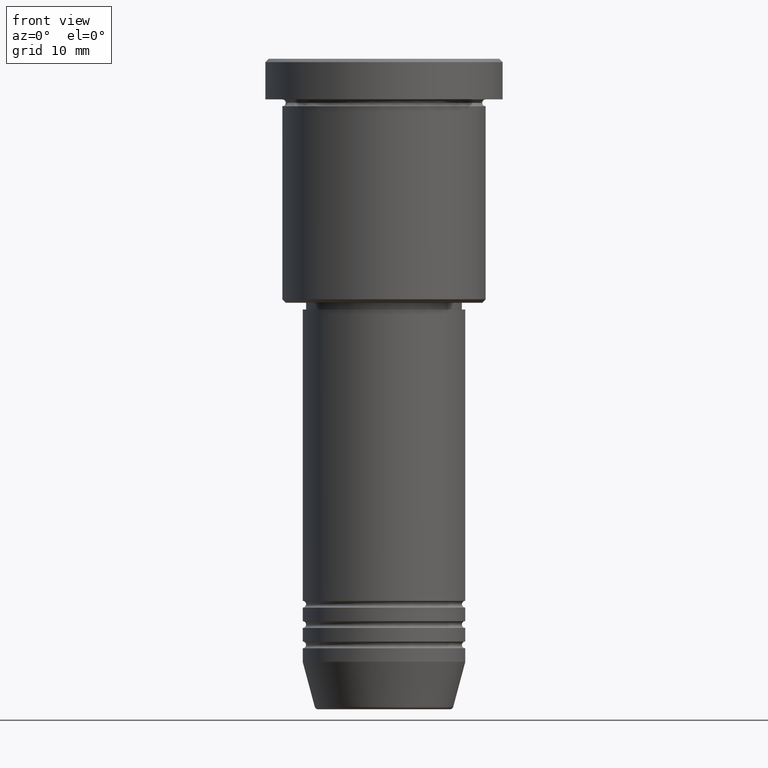
[diagram: clean part render]
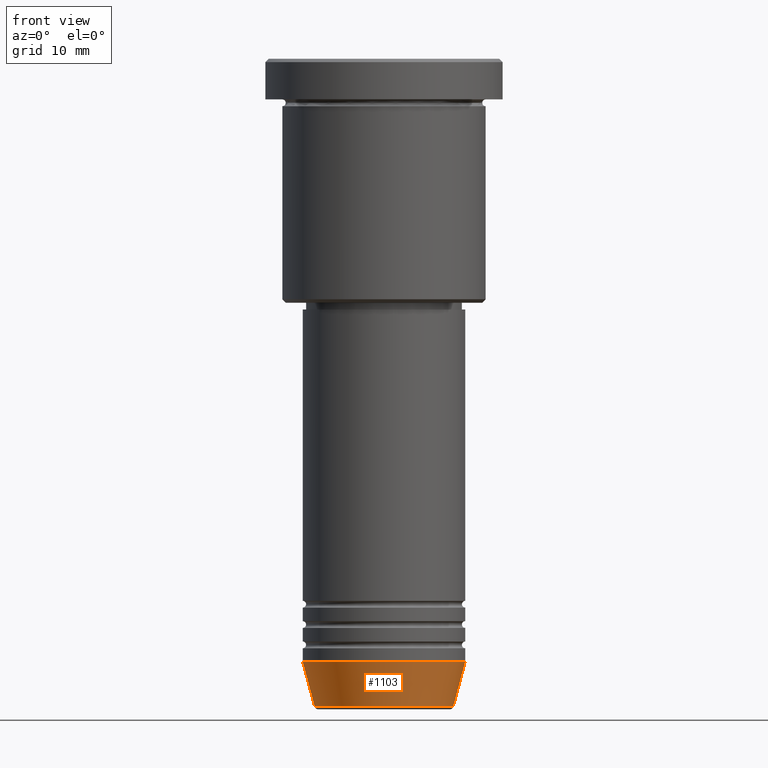
[diagram: same view with one face highlighted and labeled with its STEP entity id]
A machine part, front view. The second image highlights one B-rep face of the part: STEP entity #1103.
In plain terms, the highlighted conical surface has half-angle 15 deg.
Its self-contained STEP definition (entity closure, byte-faithful):
#14 = CARTESIAN_POINT ( 'NONE',  ( 12.00000000000000000, 0.000000000000000000, -89.00000000000000000 ) ) ;
#30 = CARTESIAN_POINT ( 'NONE',  ( -12.00000000000000000, 1.469576158976823947E-15, -89.00000000000000000 ) ) ;
#47 = ORIENTED_EDGE ( 'NONE', *, *, #251, .F. ) ;
#55 = VECTOR ( 'NONE', #1107, 1000.000000000000000 ) ;
#74 = CARTESIAN_POINT ( 'NONE',  ( 0.000000000000000000, 0.000000000000000000, -95.62940952255127058 ) ) ;
#100 = VERTEX_POINT ( 'NONE', #1151 ) ;
#123 = EDGE_CURVE ( 'NONE', #100, #731, #218, .T. ) ;
#218 = CIRCLE ( 'NONE', #279, 10.22365507213718949 ) ;
#244 = ORIENTED_EDGE ( 'NONE', *, *, #582, .F. ) ;
#251 = EDGE_CURVE ( 'NONE', #303, #824, #381, .T. ) ;
#265 = DIRECTION ( 'NONE',  ( 1.000000000000000000, 0.000000000000000000, 0.000000000000000000 ) ) ;
#274 = CARTESIAN_POINT ( 'NONE',  ( 10.22365507213718949, 0.000000000000000000, -95.62940952255127058 ) ) ;
#279 = AXIS2_PLACEMENT_3D ( 'NONE', #74, #1167, #620 ) ;
#293 = CARTESIAN_POINT ( 'NONE',  ( -12.00000000000000000, 1.469576158976823947E-15, -89.00000000000000000 ) ) ;
#303 = VERTEX_POINT ( 'NONE', #30 ) ;
#341 = VECTOR ( 'NONE', #1015, 1000.000000000000000 ) ;
#343 = CONICAL_SURFACE ( 'NONE', #940, 12.00000000000000000, 0.2617993877991500740 ) ;
#381 = CIRCLE ( 'NONE', #531, 12.00000000000000000 ) ;
#531 = AXIS2_PLACEMENT_3D ( 'NONE', #611, #1154, #265 ) ;
#539 = DIRECTION ( 'NONE',  ( -0.000000000000000000, -0.000000000000000000, 1.000000000000000000 ) ) ;
#559 = EDGE_LOOP ( 'NONE', ( #244, #850, #960, #47 ) ) ;
#582 = EDGE_CURVE ( 'NONE', #100, #303, #1102, .T. ) ;
#611 = CARTESIAN_POINT ( 'NONE',  ( 0.000000000000000000, 0.000000000000000000, -89.00000000000000000 ) ) ;
#620 = DIRECTION ( 'NONE',  ( 1.000000000000000000, 0.000000000000000000, 0.000000000000000000 ) ) ;
#673 = CARTESIAN_POINT ( 'NONE',  ( 12.00000000000000000, 0.000000000000000000, -89.00000000000000000 ) ) ;
#717 = DIRECTION ( 'NONE',  ( 1.000000000000000000, 0.000000000000000000, 0.000000000000000000 ) ) ;
#731 = VERTEX_POINT ( 'NONE', #274 ) ;
#759 = EDGE_CURVE ( 'NONE', #731, #824, #1121, .T. ) ;
#812 = FACE_OUTER_BOUND ( 'NONE', #559, .T. ) ;
#824 = VERTEX_POINT ( 'NONE', #14 ) ;
#825 = CARTESIAN_POINT ( 'NONE',  ( 0.000000000000000000, 0.000000000000000000, -89.00000000000000000 ) ) ;
#850 = ORIENTED_EDGE ( 'NONE', *, *, #123, .T. ) ;
#940 = AXIS2_PLACEMENT_3D ( 'NONE', #825, #539, #717 ) ;
#960 = ORIENTED_EDGE ( 'NONE', *, *, #759, .T. ) ;
#1015 = DIRECTION ( 'NONE',  ( 0.2588190451025213501, 0.000000000000000000, 0.9659258262890680902 ) ) ;
#1102 = LINE ( 'NONE', #293, #55 ) ;
#1103 = ADVANCED_FACE ( 'NONE', ( #812 ), #343, .T. ) ;
#1107 = DIRECTION ( 'NONE',  ( -0.2588190451025213501, 3.169619151431772337E-17, 0.9659258262890680902 ) ) ;
#1121 = LINE ( 'NONE', #673, #341 ) ;
#1151 = CARTESIAN_POINT ( 'NONE',  ( -10.22365507213718949, 1.360806402472382547E-15, -95.62940952255127058 ) ) ;
#1154 = DIRECTION ( 'NONE',  ( -0.000000000000000000, -0.000000000000000000, 1.000000000000000000 ) ) ;
#1167 = DIRECTION ( 'NONE',  ( -0.000000000000000000, -0.000000000000000000, 1.000000000000000000 ) ) ;